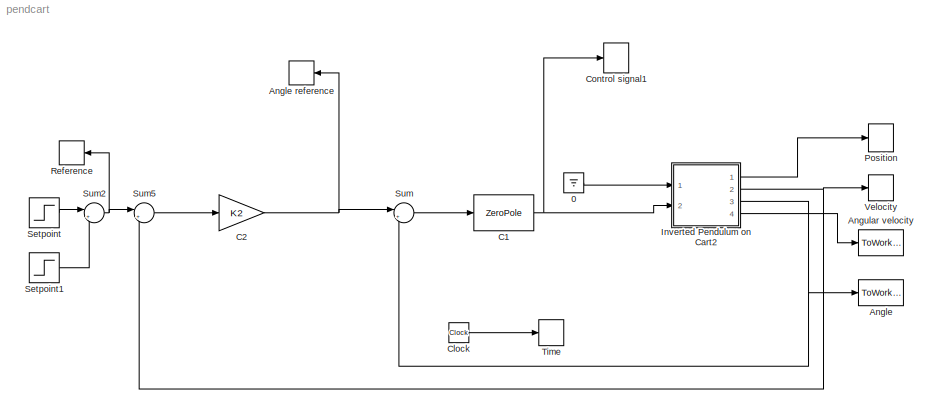
MODEL pendcart
KIND model
BLOCK [Ground] 0
  SID = 94
BLOCK [ToWorkspace] Angle
  MaxDataPoints = inf
  Ports = [1]
  SID = 1
  SampleTime = -1
  VariableName = theta
BLOCK [ToWorkspace] Angle reference
  MaxDataPoints = inf
  Ports = [1]
  SID = 2
  SampleTime = -1
  VariableName = ri
BLOCK [ToWorkspace] Angular velocity
  MaxDataPoints = inf
  Ports = [1]
  SID = 3
  SampleTime = -1
  VariableName = omega
BLOCK [ZeroPole] C1
  Gain = [K1]
  Poles = [-p1]
  SID = 72
  Zeros = [-p]
BLOCK [Gain] C2
  Gain = K2
  OutDataTypeStr = Inherit: Inherit via internal rule
  ParamDataTypeStr = Inherit: Inherit via internal rule
  SID = 114
  SaturateOnIntegerOverflow = off
BLOCK [Clock] Clock
  SID = 4
BLOCK [ToWorkspace] Control signal1
  MaxDataPoints = inf
  Ports = [1]
  SID = 5
  SampleTime = -1
  VariableName = u
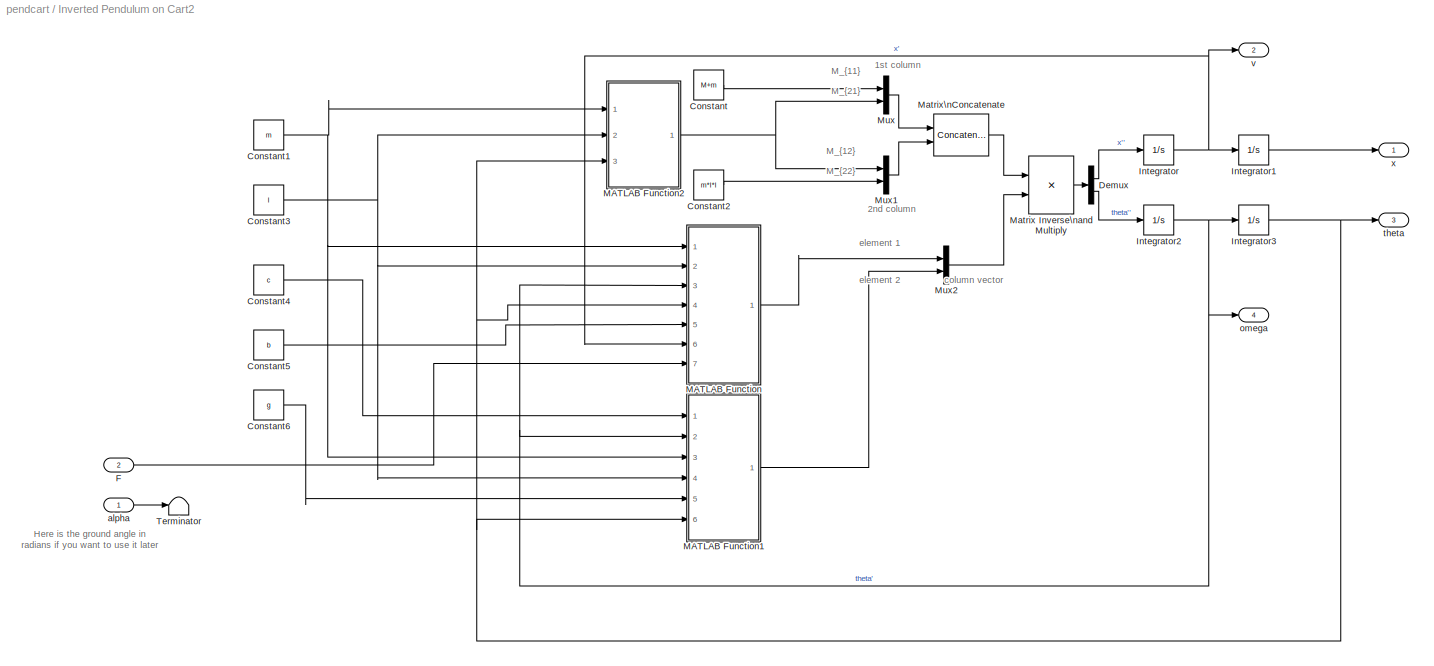
BLOCK [SubSystem] Inverted Pendulum on Cart2
  Ports = [2, 4]
  RequestExecContextInheritance = off
  SID = 16
  Variant = off
BLOCK [Constant] Inverted Pendulum on Cart2/Constant
  SID = 191
  Value = M+m
BLOCK [Constant] Inverted Pendulum on Cart2/Constant1
  SID = 225
  Value = m
BLOCK [Constant] Inverted Pendulum on Cart2/Constant2
  SID = 193
  Value = m*l*l
BLOCK [Constant] Inverted Pendulum on Cart2/Constant3
  SID = 226
  Value = l
BLOCK [Constant] Inverted Pendulum on Cart2/Constant4
  SID = 227
  Value = c
BLOCK [Constant] Inverted Pendulum on Cart2/Constant5
  SID = 229
  Value = b
BLOCK [Constant] Inverted Pendulum on Cart2/Constant6
  SID = 230
  Value = g
BLOCK [Demux] Inverted Pendulum on Cart2/Demux
  DisplayOption = bar
  Outputs = 2
  Ports = [1, 2]
  SID = 144
BLOCK [Inport] Inverted Pendulum on Cart2/F
  IconDisplay = Port number
  Port = 2
  SID = 132
BLOCK [Integrator] Inverted Pendulum on Cart2/Integrator
  Ports = [1, 1]
  SID = 146
BLOCK [Integrator] Inverted Pendulum on Cart2/Integrator1
  Ports = [1, 1]
  SID = 147
BLOCK [Integrator] Inverted Pendulum on Cart2/Integrator2
  Ports = [1, 1]
  SID = 148
BLOCK [Integrator] Inverted Pendulum on Cart2/Integrator3
  InitialCondition = theta0
  Ports = [1, 1]
  SID = 149
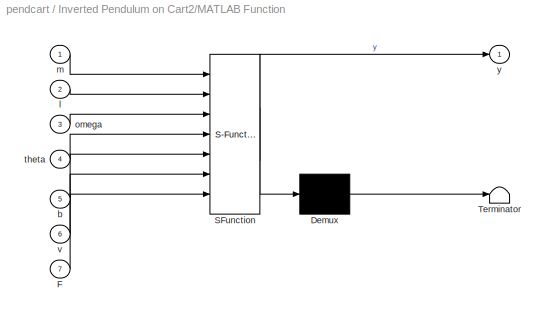
BLOCK [SubSystem] Inverted Pendulum on Cart2/MATLAB Function
  ErrorFcn = Stateflow.Translate.translate
  PermitHierarchicalResolution = ExplicitOnly
  Ports = [7, 1]
  RequestExecContextInheritance = off
  SFBlockType = MATLAB Function
  SID = 213
  TreatAsAtomicUnit = on
  Variant = off
BLOCK [Demux] Inverted Pendulum on Cart2/MATLAB Function/ Demux 
  Outputs = 1
  Ports = [1, 1]
  SID = 213::20
BLOCK [S-Function] Inverted Pendulum on Cart2/MATLAB Function/ SFunction 
  EnableBusSupport = on
  FunctionName = sf_sfun
  PortCounts = [7 2]
  Ports = [7, 2]
  SFcnIsStateOwnerBlock = off
  SFunctionDeploymentMode = off
  SID = 213::19
  Tag = Stateflow S-Function pendcart 2
BLOCK [Terminator] Inverted Pendulum on Cart2/MATLAB Function/ Terminator 
  SID = 213::21
BLOCK [Inport] Inverted Pendulum on Cart2/MATLAB Function/F
  IconDisplay = Port number
  Port = 7
  SID = 213::29
BLOCK [Inport] Inverted Pendulum on Cart2/MATLAB Function/b
  IconDisplay = Port number
  Port = 5
  SID = 213::27
BLOCK [Inport] Inverted Pendulum on Cart2/MATLAB Function/l
  IconDisplay = Port number
  Port = 2
  SID = 213::24
BLOCK [Inport] Inverted Pendulum on Cart2/MATLAB Function/m
  IconDisplay = Port number
  SID = 213::23
BLOCK [Inport] Inverted Pendulum on Cart2/MATLAB Function/omega
  IconDisplay = Port number
  Port = 3
  SID = 213::25
BLOCK [Inport] Inverted Pendulum on Cart2/MATLAB Function/theta
  IconDisplay = Port number
  Port = 4
  SID = 213::26
BLOCK [Inport] Inverted Pendulum on Cart2/MATLAB Function/v
  IconDisplay = Port number
  Port = 6
  SID = 213::28
BLOCK [Outport] Inverted Pendulum on Cart2/MATLAB Function/y
  IconDisplay = Port number
  SID = 213::5
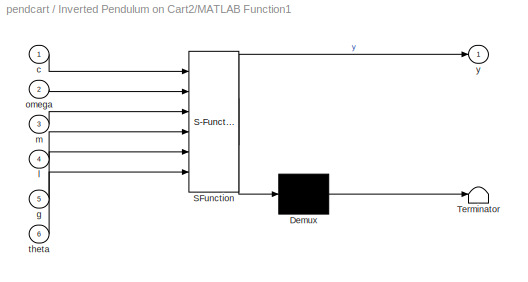
BLOCK [SubSystem] Inverted Pendulum on Cart2/MATLAB Function1
  ErrorFcn = Stateflow.Translate.translate
  PermitHierarchicalResolution = ExplicitOnly
  Ports = [6, 1]
  RequestExecContextInheritance = off
  SFBlockType = MATLAB Function
  SID = 214
  TreatAsAtomicUnit = on
  Variant = off
BLOCK [Demux] Inverted Pendulum on Cart2/MATLAB Function1/ Demux 
  Outputs = 1
  Ports = [1, 1]
  SID = 214::20
BLOCK [S-Function] Inverted Pendulum on Cart2/MATLAB Function1/ SFunction 
  EnableBusSupport = on
  FunctionName = sf_sfun
  PortCounts = [6 2]
  Ports = [6, 2]
  SFcnIsStateOwnerBlock = off
  SFunctionDeploymentMode = off
  SID = 214::19
  Tag = Stateflow S-Function pendcart 1
BLOCK [Terminator] Inverted Pendulum on Cart2/MATLAB Function1/ Terminator 
  SID = 214::21
BLOCK [Inport] Inverted Pendulum on Cart2/MATLAB Function1/c
  IconDisplay = Port number
  SID = 214::23
BLOCK [Inport] Inverted Pendulum on Cart2/MATLAB Function1/g
  IconDisplay = Port number
  Port = 5
  SID = 214::27
BLOCK [Inport] Inverted Pendulum on Cart2/MATLAB Function1/l
  IconDisplay = Port number
  Port = 4
  SID = 214::26
BLOCK [Inport] Inverted Pendulum on Cart2/MATLAB Function1/m
  IconDisplay = Port number
  Port = 3
  SID = 214::25
BLOCK [Inport] Inverted Pendulum on Cart2/MATLAB Function1/omega
  IconDisplay = Port number
  Port = 2
  SID = 214::24
BLOCK [Inport] Inverted Pendulum on Cart2/MATLAB Function1/theta
  IconDisplay = Port number
  Port = 6
  SID = 214::28
BLOCK [Outport] Inverted Pendulum on Cart2/MATLAB Function1/y
  IconDisplay = Port number
  SID = 214::5
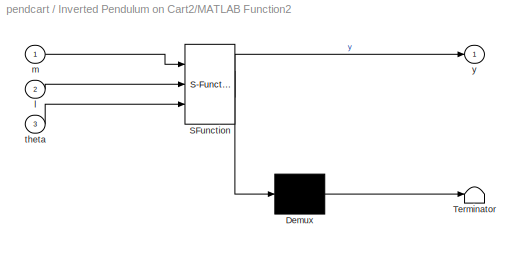
BLOCK [SubSystem] Inverted Pendulum on Cart2/MATLAB Function2
  ErrorFcn = Stateflow.Translate.translate
  PermitHierarchicalResolution = ExplicitOnly
  Ports = [3, 1]
  RequestExecContextInheritance = off
  SFBlockType = MATLAB Function
  SID = 215
  TreatAsAtomicUnit = on
  Variant = off
BLOCK [Demux] Inverted Pendulum on Cart2/MATLAB Function2/ Demux 
  Outputs = 1
  Ports = [1, 1]
  SID = 215::20
BLOCK [S-Function] Inverted Pendulum on Cart2/MATLAB Function2/ SFunction 
  EnableBusSupport = on
  FunctionName = sf_sfun
  PortCounts = [3 2]
  Ports = [3, 2]
  SFcnIsStateOwnerBlock = off
  SFunctionDeploymentMode = off
  SID = 215::19
  Tag = Stateflow S-Function pendcart 3
BLOCK [Terminator] Inverted Pendulum on Cart2/MATLAB Function2/ Terminator 
  SID = 215::21
BLOCK [Inport] Inverted Pendulum on Cart2/MATLAB Function2/l
  IconDisplay = Port number
  Port = 2
  SID = 215::24
BLOCK [Inport] Inverted Pendulum on Cart2/MATLAB Function2/m
  IconDisplay = Port number
  SID = 215::23
BLOCK [Inport] Inverted Pendulum on Cart2/MATLAB Function2/theta
  IconDisplay = Port number
  Port = 3
  SID = 215::25
BLOCK [Outport] Inverted Pendulum on Cart2/MATLAB Function2/y
  IconDisplay = Port number
  SID = 215::5
BLOCK [Product] Inverted Pendulum on Cart2/Matrix Inverse\nand Multiply
  InputSameDT = off
  Inputs = /*
  Multiplication = Matrix(*)
  OutDataTypeStr = Inherit: Inherit via internal rule
  Ports = [2, 1]
  RndMeth = Floor
  SID = 151
  SaturateOnIntegerOverflow = off
BLOCK [Concatenate] Inverted Pendulum on Cart2/Matrix\nConcatenate
  ConcatenateDimension = 2
  Mode = Multidimensional array
  Ports = [2, 1]
  SID = 150
BLOCK [Mux] Inverted Pendulum on Cart2/Mux
  DisplayOption = bar
  Inputs = 2
  Ports = [2, 1]
  SID = 152
BLOCK [Mux] Inverted Pendulum on Cart2/Mux1
  DisplayOption = bar
  Inputs = 2
  Ports = [2, 1]
  SID = 153
BLOCK [Mux] Inverted Pendulum on Cart2/Mux2
  DisplayOption = bar
  Inputs = 2
  Ports = [2, 1]
  SID = 154
BLOCK [Terminator] Inverted Pendulum on Cart2/Terminator
  SID = 115
BLOCK [Inport] Inverted Pendulum on Cart2/alpha
  IconDisplay = Port number
  SID = 87
BLOCK [Outport] Inverted Pendulum on Cart2/omega
  IconDisplay = Port number
  Port = 4
  SID = 169
BLOCK [Outport] Inverted Pendulum on Cart2/theta
  IconDisplay = Port number
  Port = 3
  SID = 168
BLOCK [Outport] Inverted Pendulum on Cart2/v
  IconDisplay = Port number
  Port = 2
  SID = 167
BLOCK [Outport] Inverted Pendulum on Cart2/x
  IconDisplay = Port number
  SID = 166
BLOCK [ToWorkspace] Position
  MaxDataPoints = inf
  Ports = [1]
  SID = 32
  SampleTime = -1
  VariableName = x
BLOCK [ToWorkspace] Reference
  MaxDataPoints = inf
  Ports = [1]
  SID = 33
  SampleTime = -1
  VariableName = r
BLOCK [Step] Setpoint
  After = 0.5
  SID = 34
  SampleTime = 0
  Time = 10
BLOCK [Step] Setpoint1
  After = -0.5
  SID = 85
  SampleTime = 0
  Time = 20
BLOCK [Sum] Sum
  IconShape = round
  InputSameDT = off
  Inputs = |+-
  OutDataTypeStr = Inherit: Inherit via internal rule
  Ports = [2, 1]
  SID = 35
  SaturateOnIntegerOverflow = off
BLOCK [Sum] Sum2
  IconShape = round
  InputSameDT = off
  Inputs = |++
  OutDataTypeStr = Inherit: Inherit via internal rule
  Ports = [2, 1]
  SID = 86
  SaturateOnIntegerOverflow = off
BLOCK [Sum] Sum5
  IconShape = round
  InputSameDT = off
  Inputs = |+-
  OutDataTypeStr = Inherit: Inherit via internal rule
  Ports = [2, 1]
  SID = 38
  SaturateOnIntegerOverflow = off
BLOCK [ToWorkspace] Time
  MaxDataPoints = inf
  Ports = [1]
  SID = 40
  SampleTime = -1
  VariableName = t
BLOCK [ToWorkspace] Velocity
  MaxDataPoints = inf
  Ports = [1]
  SID = 41
  SampleTime = -1
  VariableName = v
ANNOTATION Inverted Pendulum on Cart2: 1st column
ANNOTATION Inverted Pendulum on Cart2: 2nd column
ANNOTATION Inverted Pendulum on Cart2: Here is the ground angle in\nradians if you want to use it later
ANNOTATION Inverted Pendulum on Cart2: M_{11}
ANNOTATION Inverted Pendulum on Cart2: M_{12}
ANNOTATION Inverted Pendulum on Cart2: M_{21}
ANNOTATION Inverted Pendulum on Cart2: M_{22}
ANNOTATION Inverted Pendulum on Cart2: column vector
ANNOTATION Inverted Pendulum on Cart2: element 1
ANNOTATION Inverted Pendulum on Cart2: element 2
LINE 0:1 -> Inverted Pendulum on Cart2:1
NET C1:1 -> Control signal1:1, Inverted Pendulum on Cart2:2
NET C2:1 -> Angle reference:1, Sum:1
LINE Clock:1 -> Time:1
NET Inverted Pendulum on Cart2/Constant1:1 -> Inverted Pendulum on Cart2/MATLAB Function1:3, Inverted Pendulum on Cart2/MATLAB Function2:1, Inverted Pendulum on Cart2/MATLAB Function:1
LINE Inverted Pendulum on Cart2/Constant2:1 -> Inverted Pendulum on Cart2/Mux1:2
NET Inverted Pendulum on Cart2/Constant3:1 -> Inverted Pendulum on Cart2/MATLAB Function1:4, Inverted Pendulum on Cart2/MATLAB Function2:2, Inverted Pendulum on Cart2/MATLAB Function:2
LINE Inverted Pendulum on Cart2/Constant4:1 -> Inverted Pendulum on Cart2/MATLAB Function1:1
LINE Inverted Pendulum on Cart2/Constant5:1 -> Inverted Pendulum on Cart2/MATLAB Function:5
LINE Inverted Pendulum on Cart2/Constant6:1 -> Inverted Pendulum on Cart2/MATLAB Function1:5
LINE Inverted Pendulum on Cart2/Constant:1 -> Inverted Pendulum on Cart2/Mux:1
LINE Inverted Pendulum on Cart2/Demux:1 -> Inverted Pendulum on Cart2/Integrator:1
LINE Inverted Pendulum on Cart2/Demux:2 -> Inverted Pendulum on Cart2/Integrator2:1
LINE Inverted Pendulum on Cart2/F:1 -> Inverted Pendulum on Cart2/MATLAB Function:7
LINE Inverted Pendulum on Cart2/Integrator1:1 -> Inverted Pendulum on Cart2/x:1
NET Inverted Pendulum on Cart2/Integrator2:1 -> Inverted Pendulum on Cart2/Integrator3:1, Inverted Pendulum on Cart2/MATLAB Function1:2, Inverted Pendulum on Cart2/MATLAB Function:3, Inverted Pendulum on Cart2/omega:1
NET Inverted Pendulum on Cart2/Integrator3:1 -> Inverted Pendulum on Cart2/MATLAB Function1:6, Inverted Pendulum on Cart2/MATLAB Function2:3, Inverted Pendulum on Cart2/MATLAB Function:4, Inverted Pendulum on Cart2/theta:1
NET Inverted Pendulum on Cart2/Integrator:1 -> Inverted Pendulum on Cart2/Integrator1:1, Inverted Pendulum on Cart2/MATLAB Function:6, Inverted Pendulum on Cart2/v:1
LINE Inverted Pendulum on Cart2/MATLAB Function/ Demux :1 -> Inverted Pendulum on Cart2/MATLAB Function/ Terminator :1
LINE Inverted Pendulum on Cart2/MATLAB Function/ SFunction :1 -> Inverted Pendulum on Cart2/MATLAB Function/ Demux :1
LINE Inverted Pendulum on Cart2/MATLAB Function/ SFunction :2 -> Inverted Pendulum on Cart2/MATLAB Function/y:1
LINE Inverted Pendulum on Cart2/MATLAB Function/F:1 -> Inverted Pendulum on Cart2/MATLAB Function/ SFunction :7
LINE Inverted Pendulum on Cart2/MATLAB Function/b:1 -> Inverted Pendulum on Cart2/MATLAB Function/ SFunction :5
LINE Inverted Pendulum on Cart2/MATLAB Function/l:1 -> Inverted Pendulum on Cart2/MATLAB Function/ SFunction :2
LINE Inverted Pendulum on Cart2/MATLAB Function/m:1 -> Inverted Pendulum on Cart2/MATLAB Function/ SFunction :1
LINE Inverted Pendulum on Cart2/MATLAB Function/omega:1 -> Inverted Pendulum on Cart2/MATLAB Function/ SFunction :3
LINE Inverted Pendulum on Cart2/MATLAB Function/theta:1 -> Inverted Pendulum on Cart2/MATLAB Function/ SFunction :4
LINE Inverted Pendulum on Cart2/MATLAB Function/v:1 -> Inverted Pendulum on Cart2/MATLAB Function/ SFunction :6
LINE Inverted Pendulum on Cart2/MATLAB Function1/ Demux :1 -> Inverted Pendulum on Cart2/MATLAB Function1/ Terminator :1
LINE Inverted Pendulum on Cart2/MATLAB Function1/ SFunction :1 -> Inverted Pendulum on Cart2/MATLAB Function1/ Demux :1
LINE Inverted Pendulum on Cart2/MATLAB Function1/ SFunction :2 -> Inverted Pendulum on Cart2/MATLAB Function1/y:1
LINE Inverted Pendulum on Cart2/MATLAB Function1/c:1 -> Inverted Pendulum on Cart2/MATLAB Function1/ SFunction :1
LINE Inverted Pendulum on Cart2/MATLAB Function1/g:1 -> Inverted Pendulum on Cart2/MATLAB Function1/ SFunction :5
LINE Inverted Pendulum on Cart2/MATLAB Function1/l:1 -> Inverted Pendulum on Cart2/MATLAB Function1/ SFunction :4
LINE Inverted Pendulum on Cart2/MATLAB Function1/m:1 -> Inverted Pendulum on Cart2/MATLAB Function1/ SFunction :3
LINE Inverted Pendulum on Cart2/MATLAB Function1/omega:1 -> Inverted Pendulum on Cart2/MATLAB Function1/ SFunction :2
LINE Inverted Pendulum on Cart2/MATLAB Function1/theta:1 -> Inverted Pendulum on Cart2/MATLAB Function1/ SFunction :6
LINE Inverted Pendulum on Cart2/MATLAB Function1:1 -> Inverted Pendulum on Cart2/Mux2:2
LINE Inverted Pendulum on Cart2/MATLAB Function2/ Demux :1 -> Inverted Pendulum on Cart2/MATLAB Function2/ Terminator :1
LINE Inverted Pendulum on Cart2/MATLAB Function2/ SFunction :1 -> Inverted Pendulum on Cart2/MATLAB Function2/ Demux :1
LINE Inverted Pendulum on Cart2/MATLAB Function2/ SFunction :2 -> Inverted Pendulum on Cart2/MATLAB Function2/y:1
LINE Inverted Pendulum on Cart2/MATLAB Function2/l:1 -> Inverted Pendulum on Cart2/MATLAB Function2/ SFunction :2
LINE Inverted Pendulum on Cart2/MATLAB Function2/m:1 -> Inverted Pendulum on Cart2/MATLAB Function2/ SFunction :1
LINE Inverted Pendulum on Cart2/MATLAB Function2/theta:1 -> Inverted Pendulum on Cart2/MATLAB Function2/ SFunction :3
NET Inverted Pendulum on Cart2/MATLAB Function2:1 -> Inverted Pendulum on Cart2/Mux1:1, Inverted Pendulum on Cart2/Mux:2
LINE Inverted Pendulum on Cart2/MATLAB Function:1 -> Inverted Pendulum on Cart2/Mux2:1
LINE Inverted Pendulum on Cart2/Matrix Inverse\nand Multiply:1 -> Inverted Pendulum on Cart2/Demux:1
LINE Inverted Pendulum on Cart2/Matrix\nConcatenate:1 -> Inverted Pendulum on Cart2/Matrix Inverse\nand Multiply:1
LINE Inverted Pendulum on Cart2/Mux1:1 -> Inverted Pendulum on Cart2/Matrix\nConcatenate:2
LINE Inverted Pendulum on Cart2/Mux2:1 -> Inverted Pendulum on Cart2/Matrix Inverse\nand Multiply:2
LINE Inverted Pendulum on Cart2/Mux:1 -> Inverted Pendulum on Cart2/Matrix\nConcatenate:1
LINE Inverted Pendulum on Cart2/alpha:1 -> Inverted Pendulum on Cart2/Terminator:1
LINE Inverted Pendulum on Cart2:1 -> Position:1
NET Inverted Pendulum on Cart2:2 -> Sum5:2, Velocity:1
NET Inverted Pendulum on Cart2:3 -> Angle:1, Sum:2
LINE Inverted Pendulum on Cart2:4 -> Angular velocity:1
LINE Setpoint1:1 -> Sum2:2
LINE Setpoint:1 -> Sum2:1
NET Sum2:1 -> Reference:1, Sum5:1
LINE Sum5:1 -> C2:1
LINE Sum:1 -> C1:1
note: NET lines group one-source signal fan-out (src -> all destinations, sorted); 1:1 wires keep LINE
CHART Inverted Pendulum on Cart2/MATLAB Function1 states=1 transitions=1
  STATE_LABEL 'eML_blk_kernel()'
CHART Inverted Pendulum on Cart2/MATLAB Function states=1 transitions=1
  STATE_LABEL 'eML_blk_kernel()'
CHART Inverted Pendulum on Cart2/MATLAB Function2 states=1 transitions=1
  STATE_LABEL 'eML_blk_kernel()'
